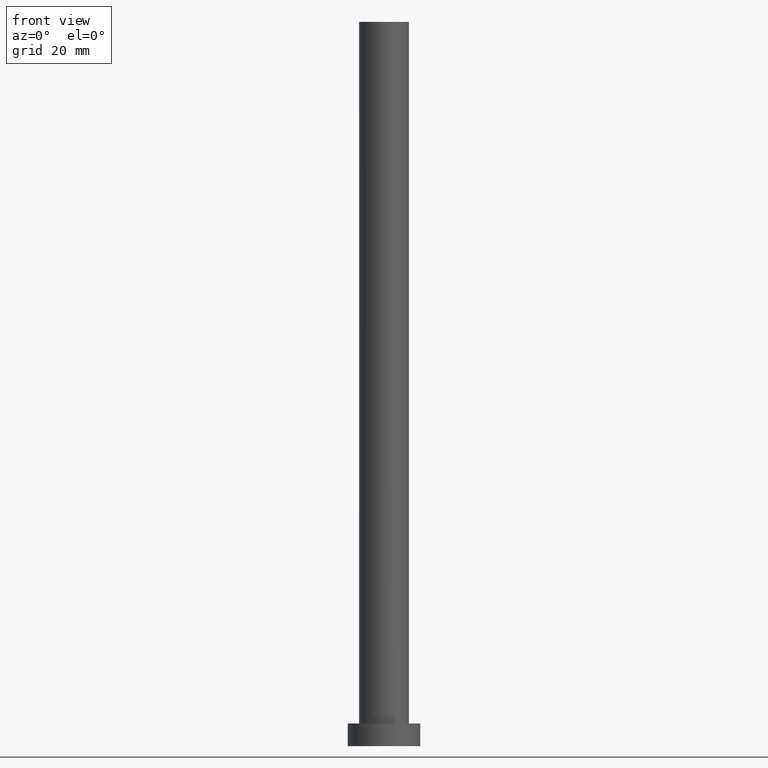
[diagram: clean part render]
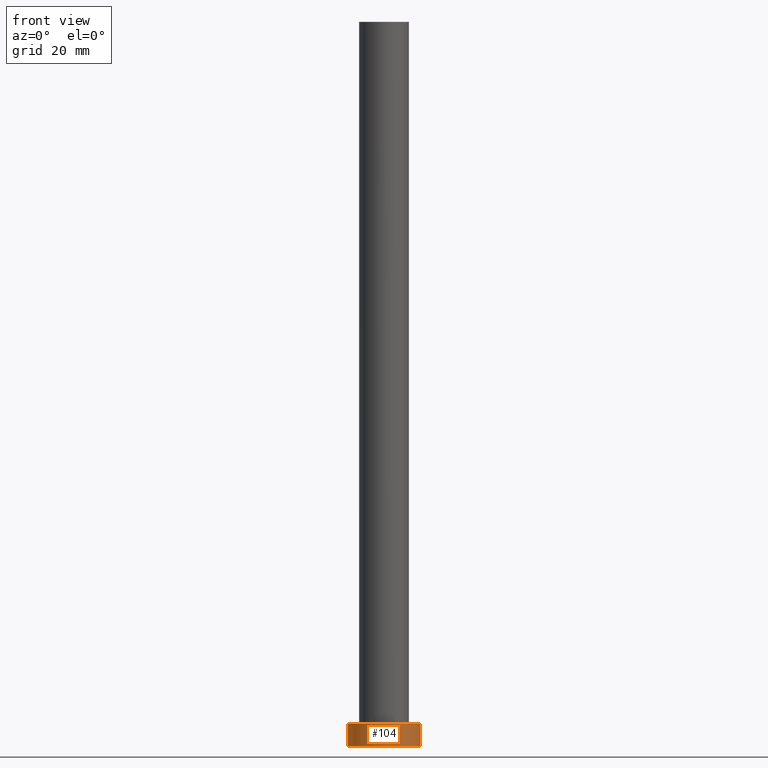
[diagram: same view with one face highlighted and labeled with its STEP entity id]
A machine part, front view. The second image highlights one B-rep face of the part: STEP entity #104.
In plain terms, the highlighted cylindrical surface (edge-blend (fillet) strip) has radius 8 mm, axis along (-0, -0, -1).
Its self-contained STEP definition (entity closure, byte-faithful):
#9 = EDGE_LOOP ( 'NONE', ( #145, #140, #250, #125 ) ) ;
#12 = CARTESIAN_POINT ( 'NONE',  ( 0.000000000000000000, 0.000000000000000000, 0.000000000000000000 ) ) ;
#26 = EDGE_CURVE ( 'NONE', #182, #123, #74, .T. ) ;
#41 = DIRECTION ( 'NONE',  ( -0.000000000000000000, -0.000000000000000000, -1.000000000000000000 ) ) ;
#50 = CARTESIAN_POINT ( 'NONE',  ( 8.000000000000000000, 9.797174393178825657E-16, 0.000000000000000000 ) ) ;
#71 = VERTEX_POINT ( 'NONE', #206 ) ;
#74 = CIRCLE ( 'NONE', #81, 8.000000000000000000 ) ;
#77 = DIRECTION ( 'NONE',  ( -0.000000000000000000, -0.000000000000000000, -1.000000000000000000 ) ) ;
#81 = AXIS2_PLACEMENT_3D ( 'NONE', #12, #208, #244 ) ;
#84 = EDGE_CURVE ( 'NONE', #127, #71, #229, .T. ) ;
#92 = DIRECTION ( 'NONE',  ( -1.000000000000000000, 0.000000000000000000, 0.000000000000000000 ) ) ;
#96 = DIRECTION ( 'NONE',  ( 1.000000000000000000, 0.000000000000000000, 0.000000000000000000 ) ) ;
#104 = ADVANCED_FACE ( 'NONE', ( #115 ), #188, .T. ) ;
#110 = AXIS2_PLACEMENT_3D ( 'NONE', #222, #126, #92 ) ;
#115 = FACE_OUTER_BOUND ( 'NONE', #9, .T. ) ;
#123 = VERTEX_POINT ( 'NONE', #50 ) ;
#125 = ORIENTED_EDGE ( 'NONE', *, *, #26, .T. ) ;
#126 = DIRECTION ( 'NONE',  ( -0.000000000000000000, -0.000000000000000000, -1.000000000000000000 ) ) ;
#127 = VERTEX_POINT ( 'NONE', #186 ) ;
#136 = EDGE_CURVE ( 'NONE', #127, #182, #171, .T. ) ;
#140 = ORIENTED_EDGE ( 'NONE', *, *, #84, .F. ) ;
#145 = ORIENTED_EDGE ( 'NONE', *, *, #157, .F. ) ;
#153 = VECTOR ( 'NONE', #41, 1000.000000000000000 ) ;
#156 = LINE ( 'NONE', #175, #153 ) ;
#157 = EDGE_CURVE ( 'NONE', #71, #123, #156, .T. ) ;
#166 = DIRECTION ( 'NONE',  ( 0.000000000000000000, 0.000000000000000000, 1.000000000000000000 ) ) ;
#171 = LINE ( 'NONE', #184, #190 ) ;
#175 = CARTESIAN_POINT ( 'NONE',  ( 8.000000000000000000, 9.797174393178825657E-16, 5.000000000000000000 ) ) ;
#177 = CARTESIAN_POINT ( 'NONE',  ( -8.000000000000000000, 0.000000000000000000, 0.000000000000000000 ) ) ;
#182 = VERTEX_POINT ( 'NONE', #177 ) ;
#184 = CARTESIAN_POINT ( 'NONE',  ( -8.000000000000000000, 0.000000000000000000, 5.000000000000000000 ) ) ;
#186 = CARTESIAN_POINT ( 'NONE',  ( -8.000000000000000000, 0.000000000000000000, 5.000000000000000000 ) ) ;
#188 = CYLINDRICAL_SURFACE ( 'NONE', #110, 8.000000000000000000 ) ;
#190 = VECTOR ( 'NONE', #77, 1000.000000000000000 ) ;
#206 = CARTESIAN_POINT ( 'NONE',  ( 8.000000000000000000, 9.797174393178825657E-16, 5.000000000000000000 ) ) ;
#208 = DIRECTION ( 'NONE',  ( 0.000000000000000000, 0.000000000000000000, 1.000000000000000000 ) ) ;
#219 = AXIS2_PLACEMENT_3D ( 'NONE', #243, #166, #96 ) ;
#222 = CARTESIAN_POINT ( 'NONE',  ( 0.000000000000000000, 0.000000000000000000, 5.000000000000000000 ) ) ;
#229 = CIRCLE ( 'NONE', #219, 8.000000000000000000 ) ;
#243 = CARTESIAN_POINT ( 'NONE',  ( 0.000000000000000000, 0.000000000000000000, 5.000000000000000000 ) ) ;
#244 = DIRECTION ( 'NONE',  ( 1.000000000000000000, 0.000000000000000000, 0.000000000000000000 ) ) ;
#250 = ORIENTED_EDGE ( 'NONE', *, *, #136, .T. ) ;